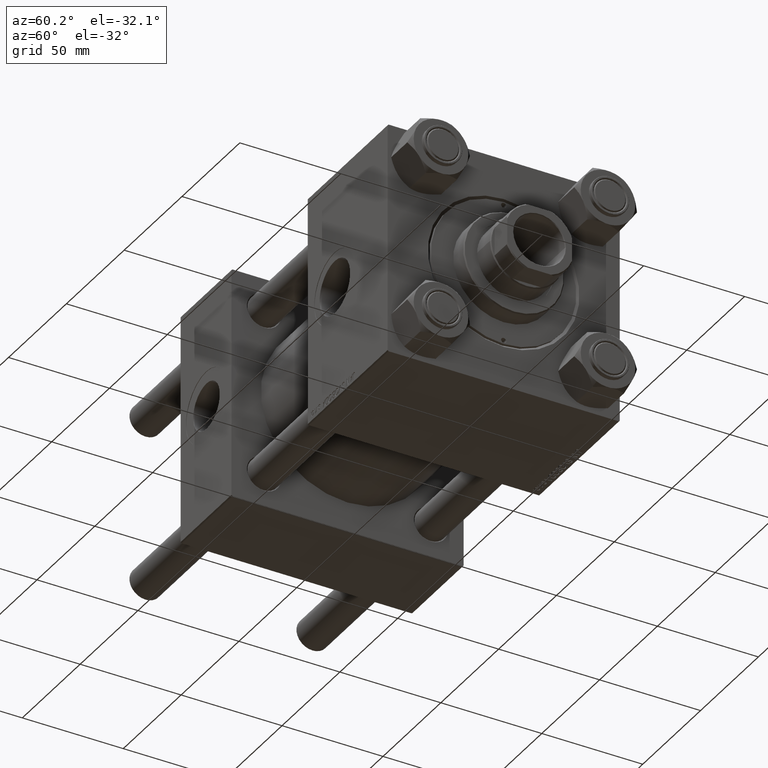
[diagram: clean part render]
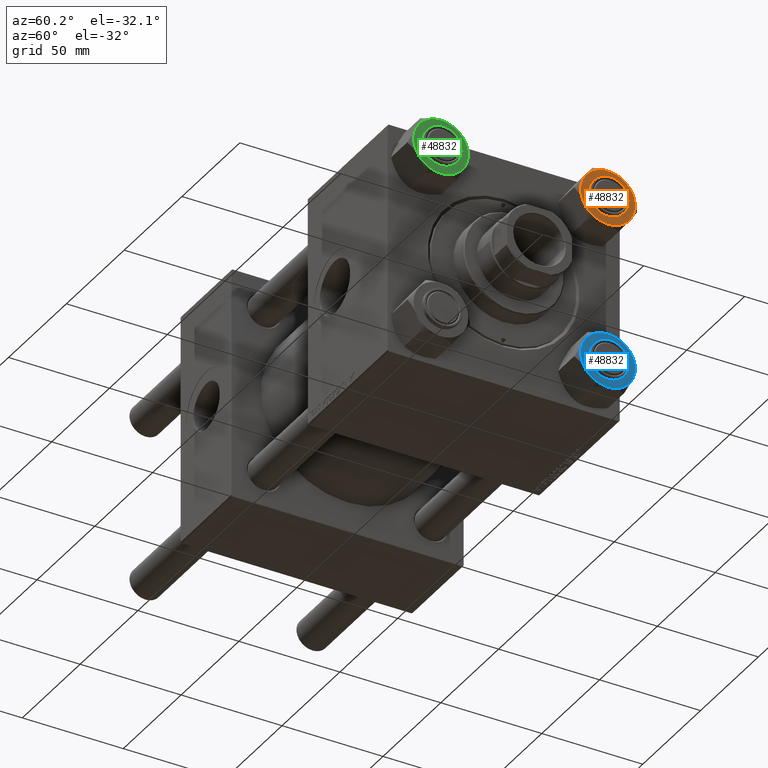
[diagram: same view with three faces highlighted in distinct colors, each labeled with its STEP entity id]
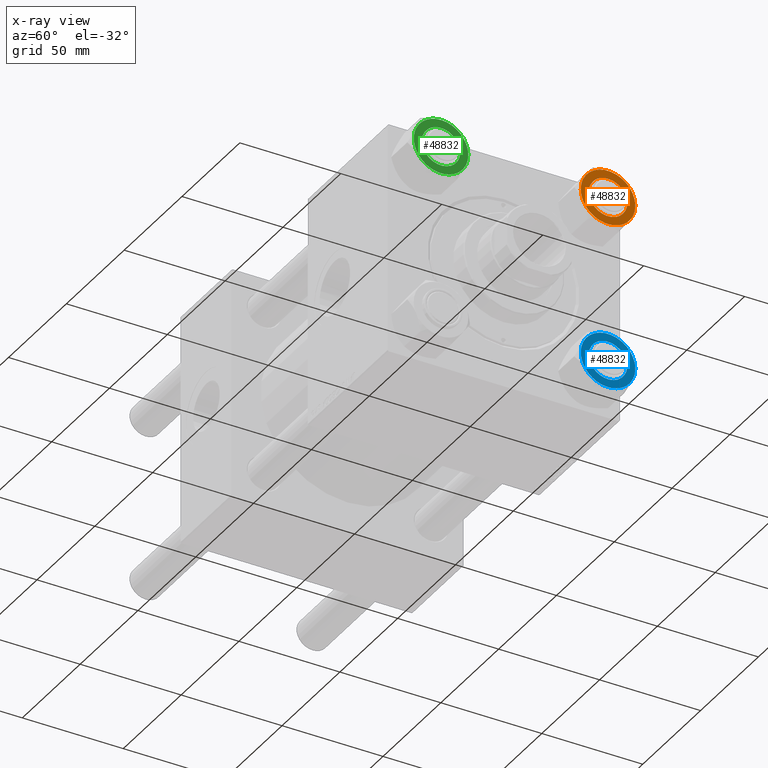
[diagram: x-ray of the same camera — body ghosted, the three highlighted faces saturated]
A machine part, auxiliary view with three faces highlighted in distinct colors.
The next image is the same camera in x-ray (body ghosted, the three faces saturated) — at least one of them is partly hidden behind the body in this view.
Their STEP definitions:

[orange] entity #48832 — the highlighted planar face has unit normal (-1, 0, -0).
#121 = AXIS2_PLACEMENT_3D ( 'NONE', #31826, #35911, #27249 ) ;
#2059 = CARTESIAN_POINT ( 'NONE',  ( -9.500000000000000000, 0.000000000000000000, 0.000000000000000000 ) ) ;
#2210 = AXIS2_PLACEMENT_3D ( 'NONE', #6303, #21875, #48669 ) ;
#2318 = DIRECTION ( 'NONE',  ( 0.000000000000000000, 0.000000000000000000, 1.000000000000000000 ) ) ;
#2367 = DIRECTION ( 'NONE',  ( -1.000000000000000000, 0.000000000000000000, 0.000000000000000000 ) ) ;
#2567 = CARTESIAN_POINT ( 'NONE',  ( 0.000000000000000000, 0.000000000000000000, 0.000000000000000000 ) ) ;
#2794 = DIRECTION ( 'NONE',  ( 0.000000000000000000, -0.000000000000000000, -1.000000000000000000 ) ) ;
#2885 = ORIENTED_EDGE ( 'NONE', *, *, #9718, .F. ) ;
#3196 = EDGE_CURVE ( 'NONE', #35100, #46778, #43362, .T. ) ;
#4114 = DIRECTION ( 'NONE',  ( 0.000000000000000000, 0.000000000000000000, 1.000000000000000000 ) ) ;
#4622 = DIRECTION ( 'NONE',  ( 1.000000000000000000, 0.000000000000000000, 0.000000000000000000 ) ) ;
#6090 = CIRCLE ( 'NONE', #46017, 9.500000000000000000 ) ;
#6303 = CARTESIAN_POINT ( 'NONE',  ( 0.000000000000000000, 0.000000000000000000, 0.000000000000000000 ) ) ;
#7089 = VERTEX_POINT ( 'NONE', #44869 ) ;
#7132 = CIRCLE ( 'NONE', #2210, 13.52731680711293549 ) ;
#8319 = CARTESIAN_POINT ( 'NONE',  ( 0.000000000000000000, 0.000000000000000000, 0.000000000000000000 ) ) ;
#9519 = VERTEX_POINT ( 'NONE', #36763 ) ;
#9718 = EDGE_CURVE ( 'NONE', #12373, #27763, #6090, .T. ) ;
#10123 = EDGE_CURVE ( 'NONE', #27763, #12373, #29766, .T. ) ;
#10914 = CIRCLE ( 'NONE', #16637, 13.52731680711293549 ) ;
#11638 = DIRECTION ( 'NONE',  ( 0.000000000000000000, -0.000000000000000000, -1.000000000000000000 ) ) ;
#11679 = PLANE ( 'NONE',  #121 ) ;
#12373 = VERTEX_POINT ( 'NONE', #32638 ) ;
#13170 = DIRECTION ( 'NONE',  ( 0.000000000000000000, 0.000000000000000000, 1.000000000000000000 ) ) ;
#14189 = DIRECTION ( 'NONE',  ( -1.000000000000000000, 0.000000000000000000, 0.000000000000000000 ) ) ;
#15076 = VERTEX_POINT ( 'NONE', #49148 ) ;
#15723 = DIRECTION ( 'NONE',  ( -1.000000000000000000, 0.000000000000000000, 0.000000000000000000 ) ) ;
#15996 = CARTESIAN_POINT ( 'NONE',  ( 0.000000000000000000, 0.000000000000000000, 0.000000000000000000 ) ) ;
#16267 = FACE_OUTER_BOUND ( 'NONE', #24163, .T. ) ;
#16299 = CARTESIAN_POINT ( 'NONE',  ( 0.000000000000000000, 0.000000000000000000, 0.000000000000000000 ) ) ;
#16637 = AXIS2_PLACEMENT_3D ( 'NONE', #8319, #11638, #15723 ) ;
#18158 = CARTESIAN_POINT ( 'NONE',  ( 7.511572993685796537E-15, -13.52731680711293372, 0.000000000000000000 ) ) ;
#19086 = EDGE_CURVE ( 'NONE', #15076, #48428, #46992, .T. ) ;
#19407 = ORIENTED_EDGE ( 'NONE', *, *, #10123, .F. ) ;
#19617 = DIRECTION ( 'NONE',  ( 0.000000000000000000, -0.000000000000000000, -1.000000000000000000 ) ) ;
#20558 = VERTEX_POINT ( 'NONE', #18158 ) ;
#21611 = CARTESIAN_POINT ( 'NONE',  ( 0.000000000000000000, 0.000000000000000000, 0.000000000000000000 ) ) ;
#21695 = CARTESIAN_POINT ( 'NONE',  ( 0.000000000000000000, 0.000000000000000000, 0.000000000000000000 ) ) ;
#21723 = DIRECTION ( 'NONE',  ( 1.000000000000000000, 0.000000000000000000, 0.000000000000000000 ) ) ;
#21861 = AXIS2_PLACEMENT_3D ( 'NONE', #37319, #41666, #2367 ) ;
#21875 = DIRECTION ( 'NONE',  ( 0.000000000000000000, -0.000000000000000000, -1.000000000000000000 ) ) ;
#22550 = AXIS2_PLACEMENT_3D ( 'NONE', #21611, #44833, #14189 ) ;
#22676 = EDGE_CURVE ( 'NONE', #7089, #46778, #26730, .T. ) ;
#24163 = EDGE_LOOP ( 'NONE', ( #45688, #48164, #39020, #40619, #45213, #38072, #47214 ) ) ;
#26730 = CIRCLE ( 'NONE', #21861, 13.52731680711293549 ) ;
#27138 = EDGE_CURVE ( 'NONE', #20558, #9519, #10914, .T. ) ;
#27249 = DIRECTION ( 'NONE',  ( -1.000000000000000000, 0.000000000000000000, -0.000000000000000000 ) ) ;
#27597 = AXIS2_PLACEMENT_3D ( 'NONE', #16299, #19617, #47685 ) ;
#27763 = VERTEX_POINT ( 'NONE', #2059 ) ;
#29487 = AXIS2_PLACEMENT_3D ( 'NONE', #39075, #4114, #4622 ) ;
#29766 = CIRCLE ( 'NONE', #44421, 9.500000000000000000 ) ;
#31206 = CARTESIAN_POINT ( 'NONE',  ( 11.71499999999999808, 6.763658403556471299, 0.000000000000000000 ) ) ;
#31826 = CARTESIAN_POINT ( 'NONE',  ( 0.000000000000000000, 0.000000000000000000, 0.000000000000000000 ) ) ;
#32638 = CARTESIAN_POINT ( 'NONE',  ( 9.500000000000000000, 1.163414459189985485E-15, 0.000000000000000000 ) ) ;
#34714 = EDGE_CURVE ( 'NONE', #9519, #7089, #7132, .T. ) ;
#35100 = VERTEX_POINT ( 'NONE', #31206 ) ;
#35911 = DIRECTION ( 'NONE',  ( 0.000000000000000000, 0.000000000000000000, -1.000000000000000000 ) ) ;
#36763 = CARTESIAN_POINT ( 'NONE',  ( -11.71499999999999808, -6.763658403556473964, 0.000000000000000000 ) ) ;
#37319 = CARTESIAN_POINT ( 'NONE',  ( 0.000000000000000000, 0.000000000000000000, 0.000000000000000000 ) ) ;
#37750 = DIRECTION ( 'NONE',  ( -1.000000000000000000, 0.000000000000000000, 0.000000000000000000 ) ) ;
#37811 = EDGE_CURVE ( 'NONE', #48428, #20558, #38883, .T. ) ;
#38072 = ORIENTED_EDGE ( 'NONE', *, *, #40946, .F. ) ;
#38883 = CIRCLE ( 'NONE', #42976, 13.52731680711293549 ) ;
#38996 = EDGE_LOOP ( 'NONE', ( #19407, #2885 ) ) ;
#39020 = ORIENTED_EDGE ( 'NONE', *, *, #27138, .F. ) ;
#39075 = CARTESIAN_POINT ( 'NONE',  ( 0.000000000000000000, 0.000000000000000000, 0.000000000000000000 ) ) ;
#39727 = DIRECTION ( 'NONE',  ( 1.000000000000000000, 0.000000000000000000, 0.000000000000000000 ) ) ;
#40619 = ORIENTED_EDGE ( 'NONE', *, *, #37811, .F. ) ;
#40946 = EDGE_CURVE ( 'NONE', #35100, #15076, #45531, .T. ) ;
#41666 = DIRECTION ( 'NONE',  ( 0.000000000000000000, -0.000000000000000000, -1.000000000000000000 ) ) ;
#42821 = FACE_BOUND ( 'NONE', #38996, .T. ) ;
#42976 = AXIS2_PLACEMENT_3D ( 'NONE', #21695, #2794, #37750 ) ;
#43362 = CIRCLE ( 'NONE', #29487, 13.52731680711293372 ) ;
#44421 = AXIS2_PLACEMENT_3D ( 'NONE', #15996, #13170, #39727 ) ;
#44833 = DIRECTION ( 'NONE',  ( 0.000000000000000000, -0.000000000000000000, -1.000000000000000000 ) ) ;
#44869 = CARTESIAN_POINT ( 'NONE',  ( -11.71500000000000341, 6.763658403556464194, 0.000000000000000000 ) ) ;
#44932 = CARTESIAN_POINT ( 'NONE',  ( -4.506943796211480446E-15, 13.52731680711293905, 0.000000000000000000 ) ) ;
#45213 = ORIENTED_EDGE ( 'NONE', *, *, #19086, .F. ) ;
#45531 = CIRCLE ( 'NONE', #27597, 13.52731680711293549 ) ;
#45688 = ORIENTED_EDGE ( 'NONE', *, *, #22676, .F. ) ;
#46017 = AXIS2_PLACEMENT_3D ( 'NONE', #2567, #2318, #21723 ) ;
#46778 = VERTEX_POINT ( 'NONE', #44932 ) ;
#46992 = CIRCLE ( 'NONE', #22550, 13.52731680711293549 ) ;
#47214 = ORIENTED_EDGE ( 'NONE', *, *, #3196, .T. ) ;
#47685 = DIRECTION ( 'NONE',  ( -1.000000000000000000, 0.000000000000000000, 0.000000000000000000 ) ) ;
#48018 = CARTESIAN_POINT ( 'NONE',  ( 11.71500000000000341, -6.763658403556461529, 0.000000000000000000 ) ) ;
#48164 = ORIENTED_EDGE ( 'NONE', *, *, #34714, .F. ) ;
#48428 = VERTEX_POINT ( 'NONE', #48018 ) ;
#48669 = DIRECTION ( 'NONE',  ( -1.000000000000000000, 0.000000000000000000, 0.000000000000000000 ) ) ;
#48832 = ADVANCED_FACE ( 'NONE', ( #42821, #16267 ), #11679, .F. ) ;
#49148 = CARTESIAN_POINT ( 'NONE',  ( 13.52731680711293727, 0.000000000000000000, 0.000000000000000000 ) ) ;

[blue] entity #48832 — the highlighted planar face has unit normal (-1, 0, 0).
#121 = AXIS2_PLACEMENT_3D ( 'NONE', #31826, #35911, #27249 ) ;
#2059 = CARTESIAN_POINT ( 'NONE',  ( -9.500000000000000000, 0.000000000000000000, 0.000000000000000000 ) ) ;
#2210 = AXIS2_PLACEMENT_3D ( 'NONE', #6303, #21875, #48669 ) ;
#2318 = DIRECTION ( 'NONE',  ( 0.000000000000000000, 0.000000000000000000, 1.000000000000000000 ) ) ;
#2367 = DIRECTION ( 'NONE',  ( -1.000000000000000000, 0.000000000000000000, 0.000000000000000000 ) ) ;
#2567 = CARTESIAN_POINT ( 'NONE',  ( 0.000000000000000000, 0.000000000000000000, 0.000000000000000000 ) ) ;
#2794 = DIRECTION ( 'NONE',  ( 0.000000000000000000, -0.000000000000000000, -1.000000000000000000 ) ) ;
#2885 = ORIENTED_EDGE ( 'NONE', *, *, #9718, .F. ) ;
#3196 = EDGE_CURVE ( 'NONE', #35100, #46778, #43362, .T. ) ;
#4114 = DIRECTION ( 'NONE',  ( 0.000000000000000000, 0.000000000000000000, 1.000000000000000000 ) ) ;
#4622 = DIRECTION ( 'NONE',  ( 1.000000000000000000, 0.000000000000000000, 0.000000000000000000 ) ) ;
#6090 = CIRCLE ( 'NONE', #46017, 9.500000000000000000 ) ;
#6303 = CARTESIAN_POINT ( 'NONE',  ( 0.000000000000000000, 0.000000000000000000, 0.000000000000000000 ) ) ;
#7089 = VERTEX_POINT ( 'NONE', #44869 ) ;
#7132 = CIRCLE ( 'NONE', #2210, 13.52731680711293549 ) ;
#8319 = CARTESIAN_POINT ( 'NONE',  ( 0.000000000000000000, 0.000000000000000000, 0.000000000000000000 ) ) ;
#9519 = VERTEX_POINT ( 'NONE', #36763 ) ;
#9718 = EDGE_CURVE ( 'NONE', #12373, #27763, #6090, .T. ) ;
#10123 = EDGE_CURVE ( 'NONE', #27763, #12373, #29766, .T. ) ;
#10914 = CIRCLE ( 'NONE', #16637, 13.52731680711293549 ) ;
#11638 = DIRECTION ( 'NONE',  ( 0.000000000000000000, -0.000000000000000000, -1.000000000000000000 ) ) ;
#11679 = PLANE ( 'NONE',  #121 ) ;
#12373 = VERTEX_POINT ( 'NONE', #32638 ) ;
#13170 = DIRECTION ( 'NONE',  ( 0.000000000000000000, 0.000000000000000000, 1.000000000000000000 ) ) ;
#14189 = DIRECTION ( 'NONE',  ( -1.000000000000000000, 0.000000000000000000, 0.000000000000000000 ) ) ;
#15076 = VERTEX_POINT ( 'NONE', #49148 ) ;
#15723 = DIRECTION ( 'NONE',  ( -1.000000000000000000, 0.000000000000000000, 0.000000000000000000 ) ) ;
#15996 = CARTESIAN_POINT ( 'NONE',  ( 0.000000000000000000, 0.000000000000000000, 0.000000000000000000 ) ) ;
#16267 = FACE_OUTER_BOUND ( 'NONE', #24163, .T. ) ;
#16299 = CARTESIAN_POINT ( 'NONE',  ( 0.000000000000000000, 0.000000000000000000, 0.000000000000000000 ) ) ;
#16637 = AXIS2_PLACEMENT_3D ( 'NONE', #8319, #11638, #15723 ) ;
#18158 = CARTESIAN_POINT ( 'NONE',  ( 7.511572993685796537E-15, -13.52731680711293372, 0.000000000000000000 ) ) ;
#19086 = EDGE_CURVE ( 'NONE', #15076, #48428, #46992, .T. ) ;
#19407 = ORIENTED_EDGE ( 'NONE', *, *, #10123, .F. ) ;
#19617 = DIRECTION ( 'NONE',  ( 0.000000000000000000, -0.000000000000000000, -1.000000000000000000 ) ) ;
#20558 = VERTEX_POINT ( 'NONE', #18158 ) ;
#21611 = CARTESIAN_POINT ( 'NONE',  ( 0.000000000000000000, 0.000000000000000000, 0.000000000000000000 ) ) ;
#21695 = CARTESIAN_POINT ( 'NONE',  ( 0.000000000000000000, 0.000000000000000000, 0.000000000000000000 ) ) ;
#21723 = DIRECTION ( 'NONE',  ( 1.000000000000000000, 0.000000000000000000, 0.000000000000000000 ) ) ;
#21861 = AXIS2_PLACEMENT_3D ( 'NONE', #37319, #41666, #2367 ) ;
#21875 = DIRECTION ( 'NONE',  ( 0.000000000000000000, -0.000000000000000000, -1.000000000000000000 ) ) ;
#22550 = AXIS2_PLACEMENT_3D ( 'NONE', #21611, #44833, #14189 ) ;
#22676 = EDGE_CURVE ( 'NONE', #7089, #46778, #26730, .T. ) ;
#24163 = EDGE_LOOP ( 'NONE', ( #45688, #48164, #39020, #40619, #45213, #38072, #47214 ) ) ;
#26730 = CIRCLE ( 'NONE', #21861, 13.52731680711293549 ) ;
#27138 = EDGE_CURVE ( 'NONE', #20558, #9519, #10914, .T. ) ;
#27249 = DIRECTION ( 'NONE',  ( -1.000000000000000000, 0.000000000000000000, -0.000000000000000000 ) ) ;
#27597 = AXIS2_PLACEMENT_3D ( 'NONE', #16299, #19617, #47685 ) ;
#27763 = VERTEX_POINT ( 'NONE', #2059 ) ;
#29487 = AXIS2_PLACEMENT_3D ( 'NONE', #39075, #4114, #4622 ) ;
#29766 = CIRCLE ( 'NONE', #44421, 9.500000000000000000 ) ;
#31206 = CARTESIAN_POINT ( 'NONE',  ( 11.71499999999999808, 6.763658403556471299, 0.000000000000000000 ) ) ;
#31826 = CARTESIAN_POINT ( 'NONE',  ( 0.000000000000000000, 0.000000000000000000, 0.000000000000000000 ) ) ;
#32638 = CARTESIAN_POINT ( 'NONE',  ( 9.500000000000000000, 1.163414459189985485E-15, 0.000000000000000000 ) ) ;
#34714 = EDGE_CURVE ( 'NONE', #9519, #7089, #7132, .T. ) ;
#35100 = VERTEX_POINT ( 'NONE', #31206 ) ;
#35911 = DIRECTION ( 'NONE',  ( 0.000000000000000000, 0.000000000000000000, -1.000000000000000000 ) ) ;
#36763 = CARTESIAN_POINT ( 'NONE',  ( -11.71499999999999808, -6.763658403556473964, 0.000000000000000000 ) ) ;
#37319 = CARTESIAN_POINT ( 'NONE',  ( 0.000000000000000000, 0.000000000000000000, 0.000000000000000000 ) ) ;
#37750 = DIRECTION ( 'NONE',  ( -1.000000000000000000, 0.000000000000000000, 0.000000000000000000 ) ) ;
#37811 = EDGE_CURVE ( 'NONE', #48428, #20558, #38883, .T. ) ;
#38072 = ORIENTED_EDGE ( 'NONE', *, *, #40946, .F. ) ;
#38883 = CIRCLE ( 'NONE', #42976, 13.52731680711293549 ) ;
#38996 = EDGE_LOOP ( 'NONE', ( #19407, #2885 ) ) ;
#39020 = ORIENTED_EDGE ( 'NONE', *, *, #27138, .F. ) ;
#39075 = CARTESIAN_POINT ( 'NONE',  ( 0.000000000000000000, 0.000000000000000000, 0.000000000000000000 ) ) ;
#39727 = DIRECTION ( 'NONE',  ( 1.000000000000000000, 0.000000000000000000, 0.000000000000000000 ) ) ;
#40619 = ORIENTED_EDGE ( 'NONE', *, *, #37811, .F. ) ;
#40946 = EDGE_CURVE ( 'NONE', #35100, #15076, #45531, .T. ) ;
#41666 = DIRECTION ( 'NONE',  ( 0.000000000000000000, -0.000000000000000000, -1.000000000000000000 ) ) ;
#42821 = FACE_BOUND ( 'NONE', #38996, .T. ) ;
#42976 = AXIS2_PLACEMENT_3D ( 'NONE', #21695, #2794, #37750 ) ;
#43362 = CIRCLE ( 'NONE', #29487, 13.52731680711293372 ) ;
#44421 = AXIS2_PLACEMENT_3D ( 'NONE', #15996, #13170, #39727 ) ;
#44833 = DIRECTION ( 'NONE',  ( 0.000000000000000000, -0.000000000000000000, -1.000000000000000000 ) ) ;
#44869 = CARTESIAN_POINT ( 'NONE',  ( -11.71500000000000341, 6.763658403556464194, 0.000000000000000000 ) ) ;
#44932 = CARTESIAN_POINT ( 'NONE',  ( -4.506943796211480446E-15, 13.52731680711293905, 0.000000000000000000 ) ) ;
#45213 = ORIENTED_EDGE ( 'NONE', *, *, #19086, .F. ) ;
#45531 = CIRCLE ( 'NONE', #27597, 13.52731680711293549 ) ;
#45688 = ORIENTED_EDGE ( 'NONE', *, *, #22676, .F. ) ;
#46017 = AXIS2_PLACEMENT_3D ( 'NONE', #2567, #2318, #21723 ) ;
#46778 = VERTEX_POINT ( 'NONE', #44932 ) ;
#46992 = CIRCLE ( 'NONE', #22550, 13.52731680711293549 ) ;
#47214 = ORIENTED_EDGE ( 'NONE', *, *, #3196, .T. ) ;
#47685 = DIRECTION ( 'NONE',  ( -1.000000000000000000, 0.000000000000000000, 0.000000000000000000 ) ) ;
#48018 = CARTESIAN_POINT ( 'NONE',  ( 11.71500000000000341, -6.763658403556461529, 0.000000000000000000 ) ) ;
#48164 = ORIENTED_EDGE ( 'NONE', *, *, #34714, .F. ) ;
#48428 = VERTEX_POINT ( 'NONE', #48018 ) ;
#48669 = DIRECTION ( 'NONE',  ( -1.000000000000000000, 0.000000000000000000, 0.000000000000000000 ) ) ;
#48832 = ADVANCED_FACE ( 'NONE', ( #42821, #16267 ), #11679, .F. ) ;
#49148 = CARTESIAN_POINT ( 'NONE',  ( 13.52731680711293727, 0.000000000000000000, 0.000000000000000000 ) ) ;

[green] entity #48832 — the highlighted planar face has unit normal (-1, -0, -0).
#121 = AXIS2_PLACEMENT_3D ( 'NONE', #31826, #35911, #27249 ) ;
#2059 = CARTESIAN_POINT ( 'NONE',  ( -9.500000000000000000, 0.000000000000000000, 0.000000000000000000 ) ) ;
#2210 = AXIS2_PLACEMENT_3D ( 'NONE', #6303, #21875, #48669 ) ;
#2318 = DIRECTION ( 'NONE',  ( 0.000000000000000000, 0.000000000000000000, 1.000000000000000000 ) ) ;
#2367 = DIRECTION ( 'NONE',  ( -1.000000000000000000, 0.000000000000000000, 0.000000000000000000 ) ) ;
#2567 = CARTESIAN_POINT ( 'NONE',  ( 0.000000000000000000, 0.000000000000000000, 0.000000000000000000 ) ) ;
#2794 = DIRECTION ( 'NONE',  ( 0.000000000000000000, -0.000000000000000000, -1.000000000000000000 ) ) ;
#2885 = ORIENTED_EDGE ( 'NONE', *, *, #9718, .F. ) ;
#3196 = EDGE_CURVE ( 'NONE', #35100, #46778, #43362, .T. ) ;
#4114 = DIRECTION ( 'NONE',  ( 0.000000000000000000, 0.000000000000000000, 1.000000000000000000 ) ) ;
#4622 = DIRECTION ( 'NONE',  ( 1.000000000000000000, 0.000000000000000000, 0.000000000000000000 ) ) ;
#6090 = CIRCLE ( 'NONE', #46017, 9.500000000000000000 ) ;
#6303 = CARTESIAN_POINT ( 'NONE',  ( 0.000000000000000000, 0.000000000000000000, 0.000000000000000000 ) ) ;
#7089 = VERTEX_POINT ( 'NONE', #44869 ) ;
#7132 = CIRCLE ( 'NONE', #2210, 13.52731680711293549 ) ;
#8319 = CARTESIAN_POINT ( 'NONE',  ( 0.000000000000000000, 0.000000000000000000, 0.000000000000000000 ) ) ;
#9519 = VERTEX_POINT ( 'NONE', #36763 ) ;
#9718 = EDGE_CURVE ( 'NONE', #12373, #27763, #6090, .T. ) ;
#10123 = EDGE_CURVE ( 'NONE', #27763, #12373, #29766, .T. ) ;
#10914 = CIRCLE ( 'NONE', #16637, 13.52731680711293549 ) ;
#11638 = DIRECTION ( 'NONE',  ( 0.000000000000000000, -0.000000000000000000, -1.000000000000000000 ) ) ;
#11679 = PLANE ( 'NONE',  #121 ) ;
#12373 = VERTEX_POINT ( 'NONE', #32638 ) ;
#13170 = DIRECTION ( 'NONE',  ( 0.000000000000000000, 0.000000000000000000, 1.000000000000000000 ) ) ;
#14189 = DIRECTION ( 'NONE',  ( -1.000000000000000000, 0.000000000000000000, 0.000000000000000000 ) ) ;
#15076 = VERTEX_POINT ( 'NONE', #49148 ) ;
#15723 = DIRECTION ( 'NONE',  ( -1.000000000000000000, 0.000000000000000000, 0.000000000000000000 ) ) ;
#15996 = CARTESIAN_POINT ( 'NONE',  ( 0.000000000000000000, 0.000000000000000000, 0.000000000000000000 ) ) ;
#16267 = FACE_OUTER_BOUND ( 'NONE', #24163, .T. ) ;
#16299 = CARTESIAN_POINT ( 'NONE',  ( 0.000000000000000000, 0.000000000000000000, 0.000000000000000000 ) ) ;
#16637 = AXIS2_PLACEMENT_3D ( 'NONE', #8319, #11638, #15723 ) ;
#18158 = CARTESIAN_POINT ( 'NONE',  ( 7.511572993685796537E-15, -13.52731680711293372, 0.000000000000000000 ) ) ;
#19086 = EDGE_CURVE ( 'NONE', #15076, #48428, #46992, .T. ) ;
#19407 = ORIENTED_EDGE ( 'NONE', *, *, #10123, .F. ) ;
#19617 = DIRECTION ( 'NONE',  ( 0.000000000000000000, -0.000000000000000000, -1.000000000000000000 ) ) ;
#20558 = VERTEX_POINT ( 'NONE', #18158 ) ;
#21611 = CARTESIAN_POINT ( 'NONE',  ( 0.000000000000000000, 0.000000000000000000, 0.000000000000000000 ) ) ;
#21695 = CARTESIAN_POINT ( 'NONE',  ( 0.000000000000000000, 0.000000000000000000, 0.000000000000000000 ) ) ;
#21723 = DIRECTION ( 'NONE',  ( 1.000000000000000000, 0.000000000000000000, 0.000000000000000000 ) ) ;
#21861 = AXIS2_PLACEMENT_3D ( 'NONE', #37319, #41666, #2367 ) ;
#21875 = DIRECTION ( 'NONE',  ( 0.000000000000000000, -0.000000000000000000, -1.000000000000000000 ) ) ;
#22550 = AXIS2_PLACEMENT_3D ( 'NONE', #21611, #44833, #14189 ) ;
#22676 = EDGE_CURVE ( 'NONE', #7089, #46778, #26730, .T. ) ;
#24163 = EDGE_LOOP ( 'NONE', ( #45688, #48164, #39020, #40619, #45213, #38072, #47214 ) ) ;
#26730 = CIRCLE ( 'NONE', #21861, 13.52731680711293549 ) ;
#27138 = EDGE_CURVE ( 'NONE', #20558, #9519, #10914, .T. ) ;
#27249 = DIRECTION ( 'NONE',  ( -1.000000000000000000, 0.000000000000000000, -0.000000000000000000 ) ) ;
#27597 = AXIS2_PLACEMENT_3D ( 'NONE', #16299, #19617, #47685 ) ;
#27763 = VERTEX_POINT ( 'NONE', #2059 ) ;
#29487 = AXIS2_PLACEMENT_3D ( 'NONE', #39075, #4114, #4622 ) ;
#29766 = CIRCLE ( 'NONE', #44421, 9.500000000000000000 ) ;
#31206 = CARTESIAN_POINT ( 'NONE',  ( 11.71499999999999808, 6.763658403556471299, 0.000000000000000000 ) ) ;
#31826 = CARTESIAN_POINT ( 'NONE',  ( 0.000000000000000000, 0.000000000000000000, 0.000000000000000000 ) ) ;
#32638 = CARTESIAN_POINT ( 'NONE',  ( 9.500000000000000000, 1.163414459189985485E-15, 0.000000000000000000 ) ) ;
#34714 = EDGE_CURVE ( 'NONE', #9519, #7089, #7132, .T. ) ;
#35100 = VERTEX_POINT ( 'NONE', #31206 ) ;
#35911 = DIRECTION ( 'NONE',  ( 0.000000000000000000, 0.000000000000000000, -1.000000000000000000 ) ) ;
#36763 = CARTESIAN_POINT ( 'NONE',  ( -11.71499999999999808, -6.763658403556473964, 0.000000000000000000 ) ) ;
#37319 = CARTESIAN_POINT ( 'NONE',  ( 0.000000000000000000, 0.000000000000000000, 0.000000000000000000 ) ) ;
#37750 = DIRECTION ( 'NONE',  ( -1.000000000000000000, 0.000000000000000000, 0.000000000000000000 ) ) ;
#37811 = EDGE_CURVE ( 'NONE', #48428, #20558, #38883, .T. ) ;
#38072 = ORIENTED_EDGE ( 'NONE', *, *, #40946, .F. ) ;
#38883 = CIRCLE ( 'NONE', #42976, 13.52731680711293549 ) ;
#38996 = EDGE_LOOP ( 'NONE', ( #19407, #2885 ) ) ;
#39020 = ORIENTED_EDGE ( 'NONE', *, *, #27138, .F. ) ;
#39075 = CARTESIAN_POINT ( 'NONE',  ( 0.000000000000000000, 0.000000000000000000, 0.000000000000000000 ) ) ;
#39727 = DIRECTION ( 'NONE',  ( 1.000000000000000000, 0.000000000000000000, 0.000000000000000000 ) ) ;
#40619 = ORIENTED_EDGE ( 'NONE', *, *, #37811, .F. ) ;
#40946 = EDGE_CURVE ( 'NONE', #35100, #15076, #45531, .T. ) ;
#41666 = DIRECTION ( 'NONE',  ( 0.000000000000000000, -0.000000000000000000, -1.000000000000000000 ) ) ;
#42821 = FACE_BOUND ( 'NONE', #38996, .T. ) ;
#42976 = AXIS2_PLACEMENT_3D ( 'NONE', #21695, #2794, #37750 ) ;
#43362 = CIRCLE ( 'NONE', #29487, 13.52731680711293372 ) ;
#44421 = AXIS2_PLACEMENT_3D ( 'NONE', #15996, #13170, #39727 ) ;
#44833 = DIRECTION ( 'NONE',  ( 0.000000000000000000, -0.000000000000000000, -1.000000000000000000 ) ) ;
#44869 = CARTESIAN_POINT ( 'NONE',  ( -11.71500000000000341, 6.763658403556464194, 0.000000000000000000 ) ) ;
#44932 = CARTESIAN_POINT ( 'NONE',  ( -4.506943796211480446E-15, 13.52731680711293905, 0.000000000000000000 ) ) ;
#45213 = ORIENTED_EDGE ( 'NONE', *, *, #19086, .F. ) ;
#45531 = CIRCLE ( 'NONE', #27597, 13.52731680711293549 ) ;
#45688 = ORIENTED_EDGE ( 'NONE', *, *, #22676, .F. ) ;
#46017 = AXIS2_PLACEMENT_3D ( 'NONE', #2567, #2318, #21723 ) ;
#46778 = VERTEX_POINT ( 'NONE', #44932 ) ;
#46992 = CIRCLE ( 'NONE', #22550, 13.52731680711293549 ) ;
#47214 = ORIENTED_EDGE ( 'NONE', *, *, #3196, .T. ) ;
#47685 = DIRECTION ( 'NONE',  ( -1.000000000000000000, 0.000000000000000000, 0.000000000000000000 ) ) ;
#48018 = CARTESIAN_POINT ( 'NONE',  ( 11.71500000000000341, -6.763658403556461529, 0.000000000000000000 ) ) ;
#48164 = ORIENTED_EDGE ( 'NONE', *, *, #34714, .F. ) ;
#48428 = VERTEX_POINT ( 'NONE', #48018 ) ;
#48669 = DIRECTION ( 'NONE',  ( -1.000000000000000000, 0.000000000000000000, 0.000000000000000000 ) ) ;
#48832 = ADVANCED_FACE ( 'NONE', ( #42821, #16267 ), #11679, .F. ) ;
#49148 = CARTESIAN_POINT ( 'NONE',  ( 13.52731680711293727, 0.000000000000000000, 0.000000000000000000 ) ) ;